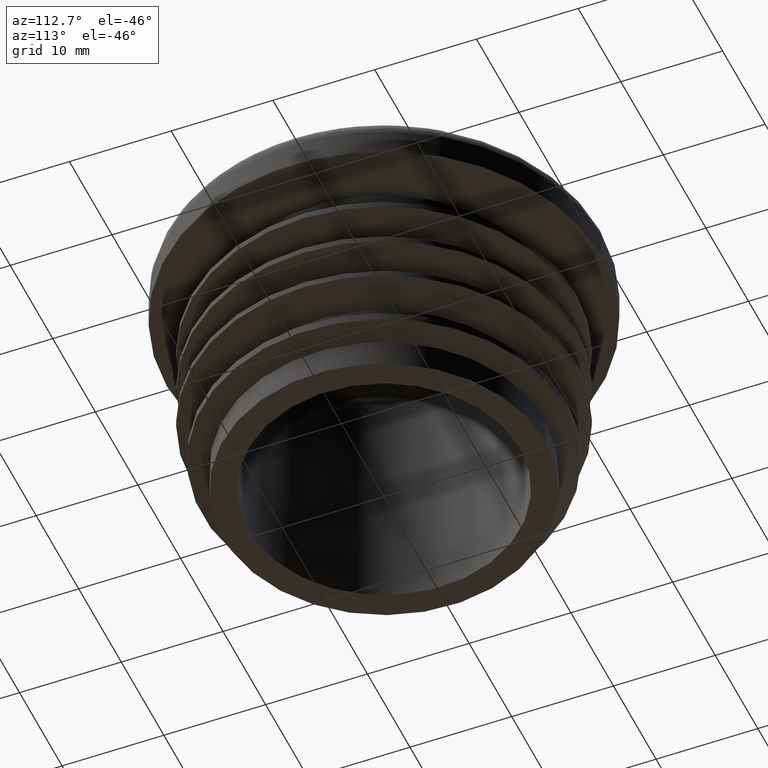
[diagram: clean part render]
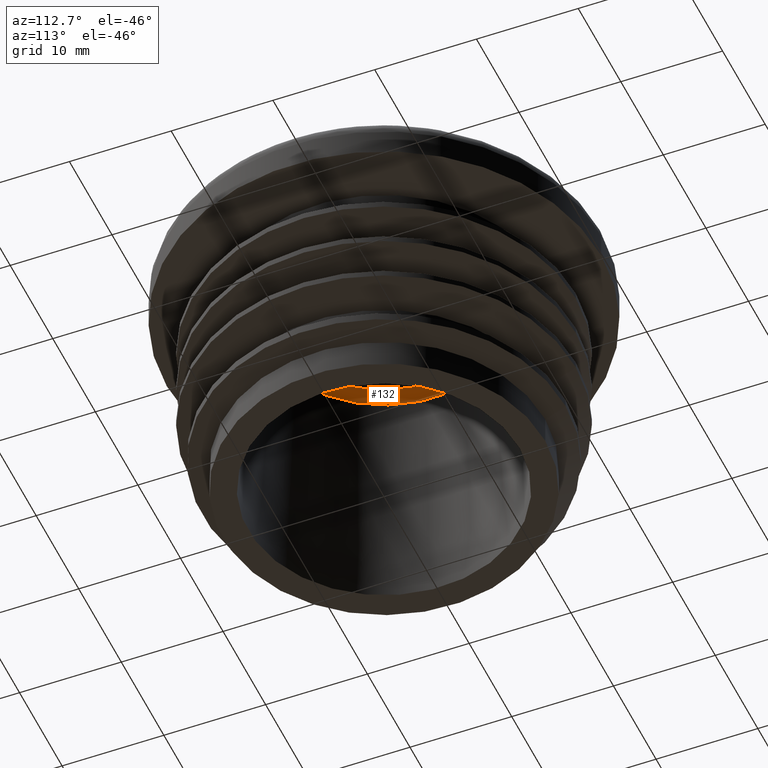
[diagram: same view with one face highlighted and labeled with its STEP entity id]
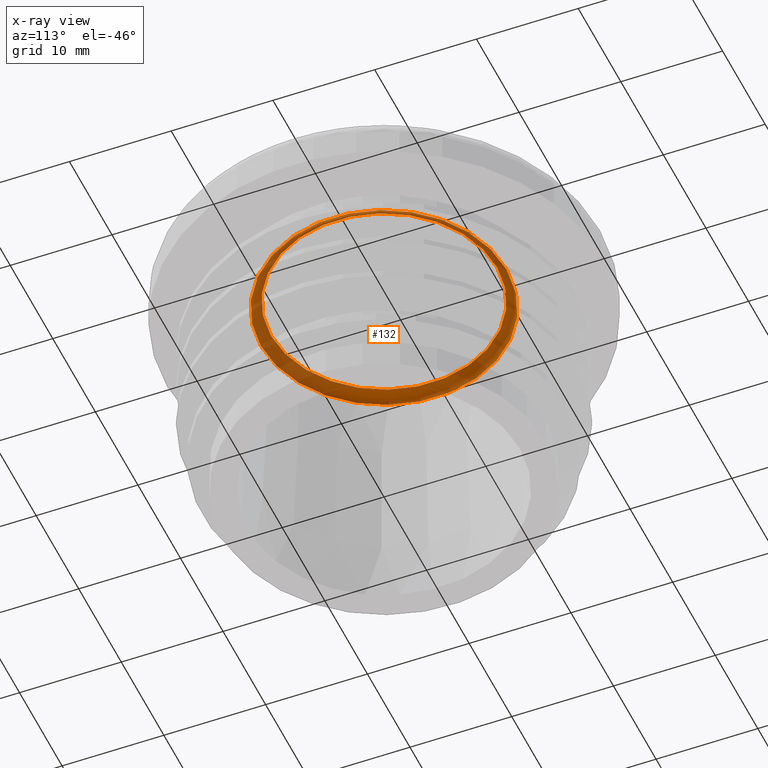
[diagram: x-ray of the same camera — body ghosted, the highlighted face saturated]
A machine part, auxiliary view. The second image highlights one B-rep face of the part: STEP entity #132.
The next image is the same camera in x-ray: the body ghosted, the highlighted face saturated — about 79% of this face is hidden behind the body in this view.
In plain terms, the highlighted toroidal blend (fillet) surface has major radius 11.117 mm and minor (blend) radius 1 mm.
Its self-contained STEP definition (entity closure, byte-faithful):
#132 = ADVANCED_FACE( '', ( #315, #316 ), #317, .F. );
#315 = FACE_OUTER_BOUND( '', #703, .T. );
#316 = FACE_OUTER_BOUND( '', #704, .T. );
#317 = TOROIDAL_SURFACE( '', #705, 11.1170448408506, 1.00000000000000 );
#703 = EDGE_LOOP( '', ( #1298 ) );
#704 = EDGE_LOOP( '', ( #1299 ) );
#705 = AXIS2_PLACEMENT_3D( '', #1300, #1301, #1302 );
#1298 = ORIENTED_EDGE( '', *, *, #1666, .F. );
#1299 = ORIENTED_EDGE( '', *, *, #1665, .T. );
#1300 = CARTESIAN_POINT( '', ( 0.000000000000000, 9.18454765366793E-017, 23.5000000000000 ) );
#1301 = DIRECTION( '', ( 0.000000000000000, -6.12303176911189E-017, -1.00000000000000 ) );
#1302 = DIRECTION( '', ( 0.000000000000000, 1.00000000000000, -6.12303176911189E-017 ) );
#1665 = EDGE_CURVE( '', #1967, #1967, #1968, .T. );
#1666 = EDGE_CURVE( '', #1969, #1969, #1970, .T. );
#1967 = VERTEX_POINT( '', #2957 );
#1968 = CIRCLE( '', #2958, 12.1156743756052 );
#1969 = VERTEX_POINT( '', #2959 );
#1970 = CIRCLE( '', #2960, 11.1170448408506 );
#2957 = CARTESIAN_POINT( '', ( 0.000000000000000, 12.1156743756052, 23.5523359562429 ) );
#2958 = AXIS2_PLACEMENT_3D( '', #3264, #3265, #3266 );
#2959 = CARTESIAN_POINT( '', ( 0.000000000000000, 11.1170448408506, 24.5000000000000 ) );
#2960 = AXIS2_PLACEMENT_3D( '', #3267, #3268, #3269 );
#3264 = CARTESIAN_POINT( '', ( 0.000000000000000, 9.50500237641014E-017, 23.5523359562429 ) );
#3265 = DIRECTION( '', ( 0.000000000000000, -6.12303176911189E-017, -1.00000000000000 ) );
#3266 = DIRECTION( '', ( 0.000000000000000, 1.00000000000000, -6.12303176911189E-017 ) );
#3267 = CARTESIAN_POINT( '', ( 0.000000000000000, 1.53075794227798E-016, 24.5000000000000 ) );
#3268 = DIRECTION( '', ( 0.000000000000000, -6.12303176911189E-017, -1.00000000000000 ) );
#3269 = DIRECTION( '', ( 0.000000000000000, 1.00000000000000, -6.12303176911189E-017 ) );